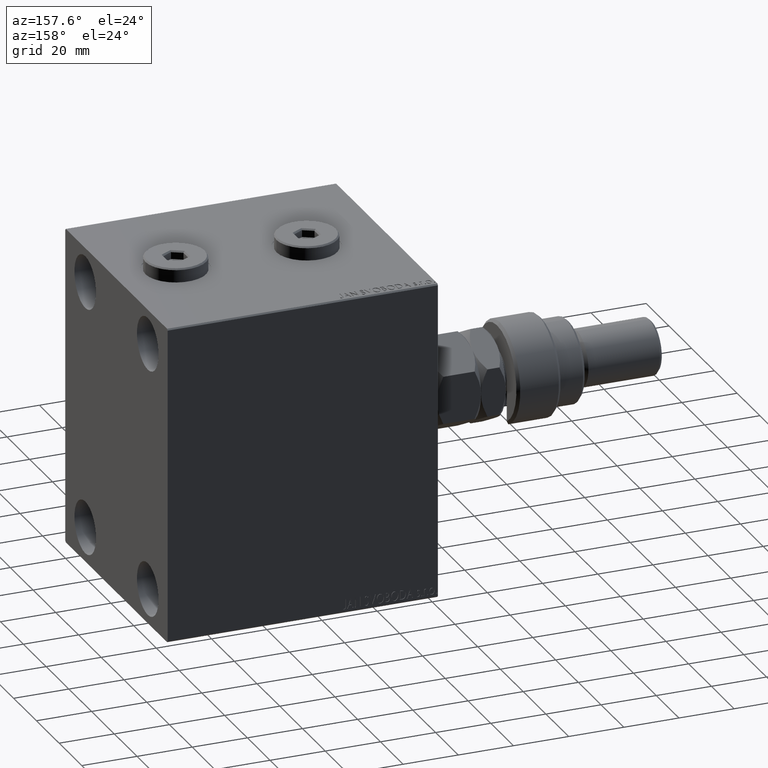
[diagram: clean part render]
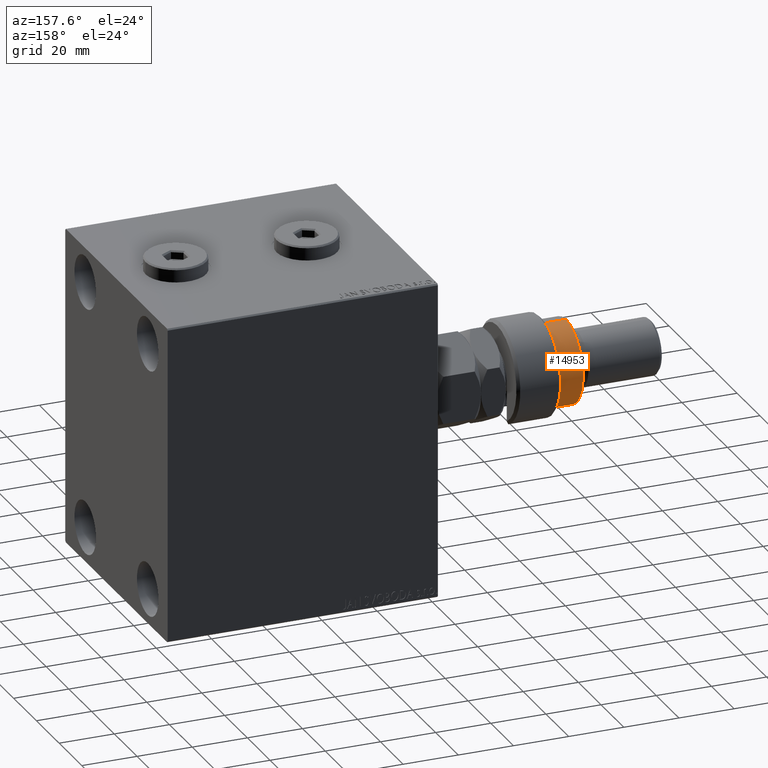
[diagram: same view with one face highlighted and labeled with its STEP entity id]
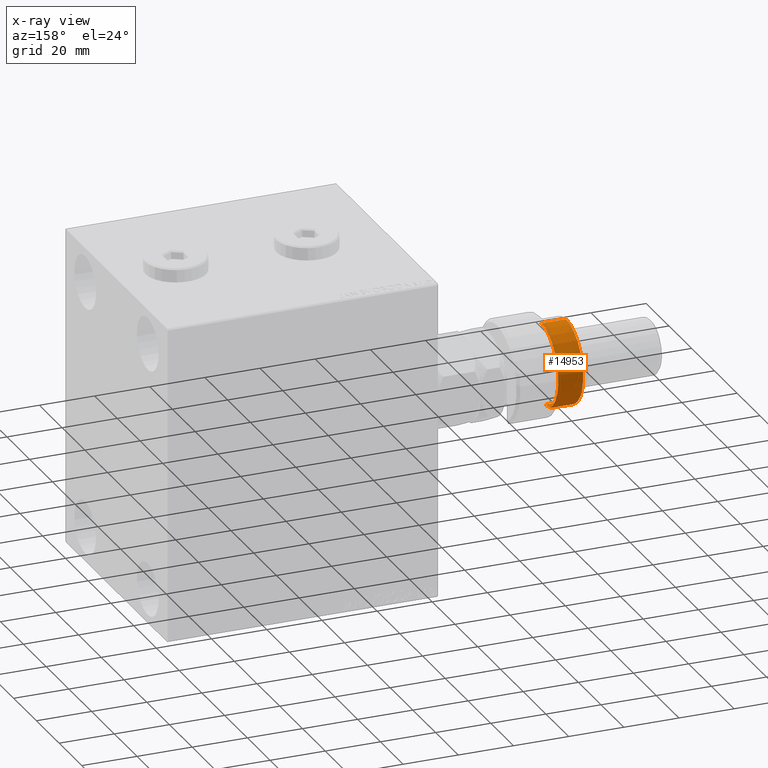
[diagram: x-ray of the same camera — body ghosted, the highlighted face saturated]
A machine part, auxiliary view. The second image highlights one B-rep face of the part: STEP entity #14953.
The next image is the same camera in x-ray: the body ghosted, the highlighted face saturated — about 0% of this face is hidden behind the body in this view.
In plain terms, the highlighted cylindrical surface (partial cylindrical patch) has radius 15 mm, axis along (1, -0, -0).
Its self-contained STEP definition (entity closure, byte-faithful):
#825 = CARTESIAN_POINT ( 'NONE',  ( 15.00000000000000000, 1.836970198721029589E-15, 26.00000000000000355 ) ) ;
#1244 = DIRECTION ( 'NONE',  ( 1.000000000000000000, 0.000000000000000000, 0.000000000000000000 ) ) ;
#1364 = CARTESIAN_POINT ( 'NONE',  ( -15.00000000000000000, 0.000000000000000000, 26.00000000000000355 ) ) ;
#1432 = DIRECTION ( 'NONE',  ( -0.000000000000000000, -0.000000000000000000, -1.000000000000000000 ) ) ;
#2721 = LINE ( 'NONE', #13878, #21819 ) ;
#3394 = EDGE_CURVE ( 'NONE', #46187, #6835, #34064, .T. ) ;
#6835 = VERTEX_POINT ( 'NONE', #9373 ) ;
#7630 = CARTESIAN_POINT ( 'NONE',  ( 0.000000000000000000, 0.000000000000000000, 24.99999999999997868 ) ) ;
#8141 = CARTESIAN_POINT ( 'NONE',  ( -12.99038105676658006, 7.500000000000000000, 16.00000000000000000 ) ) ;
#9373 = CARTESIAN_POINT ( 'NONE',  ( 15.00000000000000000, 1.836970198721029589E-15, 16.00000000000000000 ) ) ;
#11897 = ORIENTED_EDGE ( 'NONE', *, *, #32093, .F. ) ;
#12774 = ORIENTED_EDGE ( 'NONE', *, *, #19766, .F. ) ;
#12894 = CARTESIAN_POINT ( 'NONE',  ( 0.000000000000000000, 0.000000000000000000, 17.50000000000000000 ) ) ;
#13878 = CARTESIAN_POINT ( 'NONE',  ( -12.99038105676658006, 7.500000000000000000, 26.00000000000000355 ) ) ;
#14506 = EDGE_LOOP ( 'NONE', ( #31701, #43400, #24665, #28593, #12774, #11897 ) ) ;
#14935 = CARTESIAN_POINT ( 'NONE',  ( -12.99038105676658006, 7.500000000000000000, 17.50000000000000000 ) ) ;
#14953 = ADVANCED_FACE ( 'NONE', ( #34675 ), #20114, .T. ) ;
#16154 = AXIS2_PLACEMENT_3D ( 'NONE', #16487, #1432, #19398 ) ;
#16487 = CARTESIAN_POINT ( 'NONE',  ( 0.000000000000000000, 0.000000000000000000, 26.00000000000000355 ) ) ;
#16770 = CARTESIAN_POINT ( 'NONE',  ( -15.00000000000000000, 0.000000000000000000, 17.50000000000000000 ) ) ;
#19398 = DIRECTION ( 'NONE',  ( -1.000000000000000000, 0.000000000000000000, 0.000000000000000000 ) ) ;
#19766 = EDGE_CURVE ( 'NONE', #23187, #22016, #27692, .T. ) ;
#20114 = CYLINDRICAL_SURFACE ( 'NONE', #16154, 15.00000000000000000 ) ;
#20467 = CARTESIAN_POINT ( 'NONE',  ( 0.000000000000000000, 0.000000000000000000, 16.00000000000000000 ) ) ;
#20946 = DIRECTION ( 'NONE',  ( 0.000000000000000000, 0.000000000000000000, 1.000000000000000000 ) ) ;
#21819 = VECTOR ( 'NONE', #46865, 1000.000000000000000 ) ;
#22016 = VERTEX_POINT ( 'NONE', #14935 ) ;
#22416 = DIRECTION ( 'NONE',  ( 0.000000000000000000, 0.000000000000000000, -1.000000000000000000 ) ) ;
#22847 = DIRECTION ( 'NONE',  ( -1.000000000000000000, 0.000000000000000000, 0.000000000000000000 ) ) ;
#23157 = AXIS2_PLACEMENT_3D ( 'NONE', #20467, #20946, #28213 ) ;
#23187 = VERTEX_POINT ( 'NONE', #16770 ) ;
#23200 = LINE ( 'NONE', #1364, #40453 ) ;
#24300 = EDGE_CURVE ( 'NONE', #6835, #27275, #43309, .T. ) ;
#24665 = ORIENTED_EDGE ( 'NONE', *, *, #24300, .T. ) ;
#26067 = CARTESIAN_POINT ( 'NONE',  ( 15.00000000000000000, 1.836970198721029589E-15, 24.99999999999997868 ) ) ;
#27275 = VERTEX_POINT ( 'NONE', #8141 ) ;
#27320 = DIRECTION ( 'NONE',  ( -0.000000000000000000, -0.000000000000000000, -1.000000000000000000 ) ) ;
#27692 = CIRCLE ( 'NONE', #29203, 15.00000000000000000 ) ;
#28213 = DIRECTION ( 'NONE',  ( 1.000000000000000000, 0.000000000000000000, 0.000000000000000000 ) ) ;
#28593 = ORIENTED_EDGE ( 'NONE', *, *, #31396, .T. ) ;
#29203 = AXIS2_PLACEMENT_3D ( 'NONE', #12894, #37665, #22847 ) ;
#30163 = VERTEX_POINT ( 'NONE', #38526 ) ;
#31396 = EDGE_CURVE ( 'NONE', #27275, #22016, #2721, .T. ) ;
#31701 = ORIENTED_EDGE ( 'NONE', *, *, #32262, .T. ) ;
#32093 = EDGE_CURVE ( 'NONE', #30163, #23187, #23200, .T. ) ;
#32262 = EDGE_CURVE ( 'NONE', #30163, #46187, #34277, .T. ) ;
#34064 = LINE ( 'NONE', #825, #43763 ) ;
#34277 = CIRCLE ( 'NONE', #45898, 15.00000000000000000 ) ;
#34675 = FACE_OUTER_BOUND ( 'NONE', #14506, .T. ) ;
#37665 = DIRECTION ( 'NONE',  ( 0.000000000000000000, 0.000000000000000000, -1.000000000000000000 ) ) ;
#38526 = CARTESIAN_POINT ( 'NONE',  ( -15.00000000000000000, 0.000000000000000000, 24.99999999999997868 ) ) ;
#40453 = VECTOR ( 'NONE', #27320, 1000.000000000000000 ) ;
#43309 = CIRCLE ( 'NONE', #23157, 15.00000000000000000 ) ;
#43400 = ORIENTED_EDGE ( 'NONE', *, *, #3394, .T. ) ;
#43763 = VECTOR ( 'NONE', #45204, 1000.000000000000000 ) ;
#45204 = DIRECTION ( 'NONE',  ( -0.000000000000000000, -0.000000000000000000, -1.000000000000000000 ) ) ;
#45898 = AXIS2_PLACEMENT_3D ( 'NONE', #7630, #22416, #1244 ) ;
#46187 = VERTEX_POINT ( 'NONE', #26067 ) ;
#46865 = DIRECTION ( 'NONE',  ( 0.000000000000000000, 0.000000000000000000, 1.000000000000000000 ) ) ;